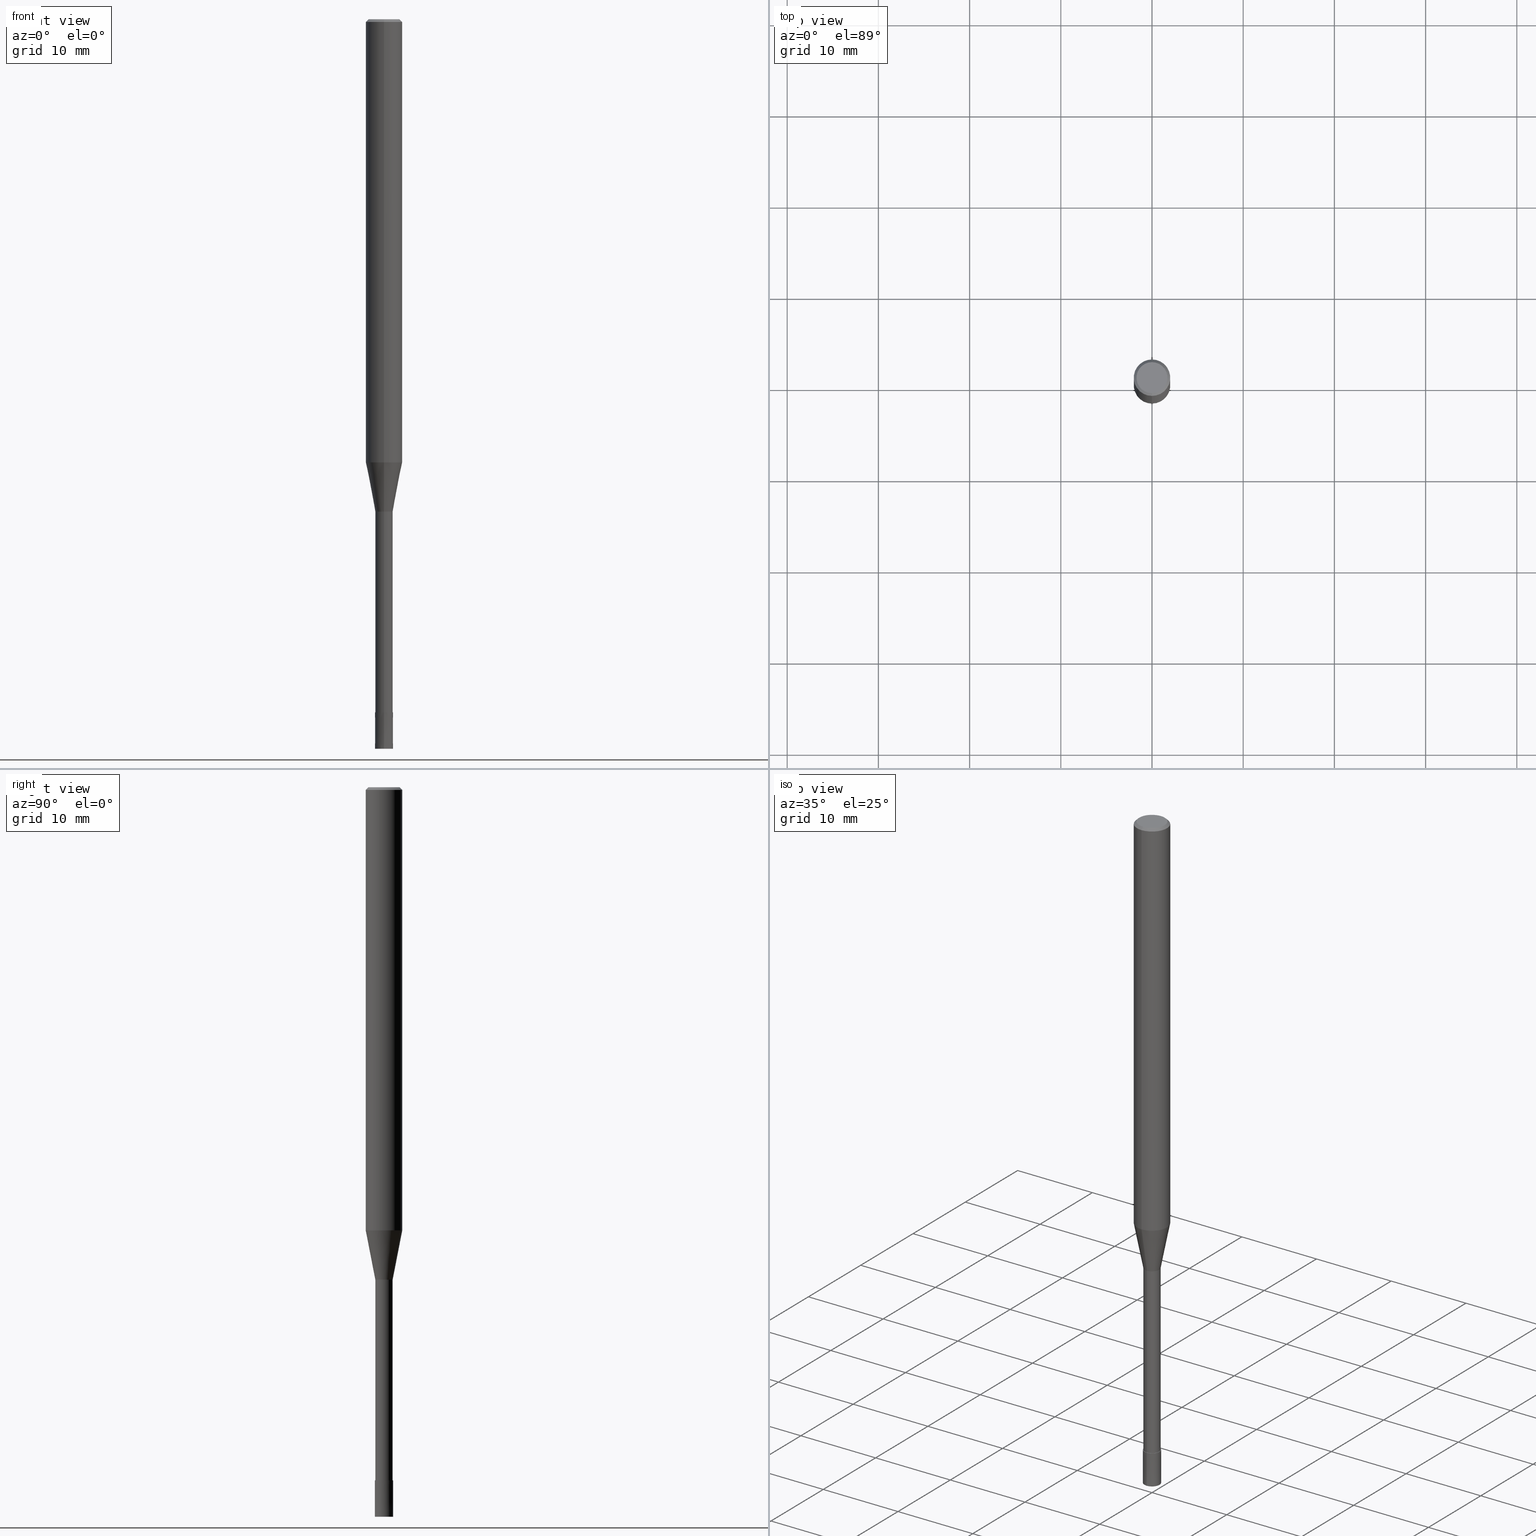
[diagram: canonical four-view strip — front | top / right | iso, engineering-drawing reading convention]
A machine part, canonical four-view strip (front | top / right | iso — engineering-drawing reading convention). The complete STEP part file that produces these views, byte-faithful:
ISO-10303-21;
HEADER;
FILE_DESCRIPTION(('no description'),'unknown implementation level');
FILE_NAME('CPRL2020-26-Huellk.stp','  ',('CIMSOURCE GmbH'),('CADClick - KiM GmbH - www.kimweb.de'),'unknown preprocess','ACIS','unknown authorization');
FILE_SCHEMA(('automotive_design'));
ENDSEC;
DATA;
#1=MECHANICAL_DESIGN_GEOMETRIC_PRESENTATION_REPRESENTATION(' ',(#14,#15,#16,#17,#18,#19,#20,#21,#22,#23,#24,#25,#26,#27,#28,#29,#30,#31,#32,#33,#34,#35,#36,#37,#38,#39,#40,#41,#42,#43,#44,#45,#46,#47,#48,#49,#50,#51,#52,#53,#54,#55,#56,#57,#58,#59,#60,#61,#62,#63,#64,#65,#66,#67,#68,#69,#70,#71,#72),#10);
#2=PRODUCT_DEFINITION_CONTEXT('',#73,'design');
#3=APPLICATION_PROTOCOL_DEFINITION('INTERNATIONAL STANDARD','automotive_design',1994,#73);
#4=PRODUCT_CATEGORY_RELATIONSHIP('NONE','NONE',#74,#75);
#5=SHAPE_DEFINITION_REPRESENTATION(#76,#77);
#6=PRODUCT_DEFINITION_CONTEXT('',#78,'design');
#7=APPLICATION_PROTOCOL_DEFINITION('INTERNATIONAL STANDARD','automotive_design',1994,#78);
#8=PRODUCT_CATEGORY_RELATIONSHIP('NONE','NONE',#79,#80);
#9=SHAPE_DEFINITION_REPRESENTATION(#81,#82);
#10= (GEOMETRIC_REPRESENTATION_CONTEXT(3)GLOBAL_UNCERTAINTY_ASSIGNED_CONTEXT((#85))GLOBAL_UNIT_ASSIGNED_CONTEXT((#87,#88,#89))REPRESENTATION_CONTEXT('NONE','WORKSPACE'));
#14=STYLED_ITEM('',(#91),#92);
#15=STYLED_ITEM('',(#93),#94);
#16=STYLED_ITEM('',(#95),#96);
#17=STYLED_ITEM('',(#97),#98);
#18=STYLED_ITEM('',(#99),#100);
#19=STYLED_ITEM('',(#101),#102);
#20=STYLED_ITEM('',(#103),#104);
#21=STYLED_ITEM('',(#105),#106);
#22=STYLED_ITEM('',(#107),#108);
#23=STYLED_ITEM('',(#109),#110);
#24=STYLED_ITEM('',(#111),#112);
#25=STYLED_ITEM('',(#113),#114);
#26=STYLED_ITEM('',(#115),#116);
#27=STYLED_ITEM('',(#117),#118);
#28=STYLED_ITEM('',(#119),#120);
#29=STYLED_ITEM('',(#121),#122);
#30=STYLED_ITEM('',(#123),#124);
#31=STYLED_ITEM('',(#125),#126);
#32=STYLED_ITEM('',(#127),#128);
#33=STYLED_ITEM('',(#129),#130);
#34=STYLED_ITEM('',(#131),#132);
#35=STYLED_ITEM('',(#133),#134);
#36=STYLED_ITEM('',(#135),#136);
#37=STYLED_ITEM('',(#137),#138);
#38=STYLED_ITEM('',(#139),#140);
#39=STYLED_ITEM('',(#141),#142);
#40=STYLED_ITEM('',(#143),#144);
#41=STYLED_ITEM('',(#145),#146);
#42=STYLED_ITEM('',(#147),#148);
#43=STYLED_ITEM('',(#149),#150);
#44=STYLED_ITEM('',(#151),#152);
#45=STYLED_ITEM('',(#153),#154);
#46=STYLED_ITEM('',(#155),#156);
#47=STYLED_ITEM('',(#157),#158);
#48=STYLED_ITEM('',(#159),#160);
#49=STYLED_ITEM('',(#161),#162);
#50=STYLED_ITEM('',(#163),#164);
#51=STYLED_ITEM('',(#165),#166);
#52=STYLED_ITEM('',(#167),#168);
#53=STYLED_ITEM('',(#169),#170);
#54=STYLED_ITEM('',(#171),#172);
#55=STYLED_ITEM('',(#173),#174);
#56=STYLED_ITEM('',(#175),#176);
#57=STYLED_ITEM('',(#177),#178);
#58=STYLED_ITEM('',(#179),#180);
#59=STYLED_ITEM('',(#181),#182);
#60=STYLED_ITEM('',(#183),#184);
#61=STYLED_ITEM('',(#185),#186);
#62=STYLED_ITEM('',(#187),#188);
#63=STYLED_ITEM('',(#189),#190);
#64=STYLED_ITEM('',(#191),#192);
#65=STYLED_ITEM('',(#193),#194);
#66=STYLED_ITEM('',(#195),#196);
#67=STYLED_ITEM('',(#197),#198);
#68=STYLED_ITEM('',(#199),#200);
#69=STYLED_ITEM('',(#201),#202);
#70=STYLED_ITEM('',(#203),#204);
#71=STYLED_ITEM('',(#205),#206);
#72=STYLED_ITEM('',(#207),#208);
#73=APPLICATION_CONTEXT(' ');
#74=PRODUCT_CATEGORY('part','NONE');
#75=PRODUCT_RELATED_PRODUCT_CATEGORY('detail',' ',(#209));
#76=PRODUCT_DEFINITION_SHAPE('NONE','NONE',#210);
#77=ADVANCED_BREP_SHAPE_REPRESENTATION('1',(#136,#211),#10);
#78=APPLICATION_CONTEXT(' ');
#79=PRODUCT_CATEGORY('part','NONE');
#80=PRODUCT_RELATED_PRODUCT_CATEGORY('detail',' ',(#212));
#81=PRODUCT_DEFINITION_SHAPE('NONE','NONE',#213);
#82=ADVANCED_BREP_SHAPE_REPRESENTATION('2',(#110,#214),#10);
#85=UNCERTAINTY_MEASURE_WITH_UNIT(LENGTH_MEASURE(1.0E-006),#87,'','');
#87= (CONVERSION_BASED_UNIT('MILLIMETRE',#217)LENGTH_UNIT()NAMED_UNIT(#220));
#88= (NAMED_UNIT(#222)PLANE_ANGLE_UNIT()SI_UNIT($,.RADIAN.));
#89= (NAMED_UNIT(#222)SOLID_ANGLE_UNIT()SI_UNIT($,.STERADIAN.));
#91=PRESENTATION_STYLE_ASSIGNMENT((#228));
#92=EDGE_CURVE('',#114,#142,#229,.T.);
#93=PRESENTATION_STYLE_ASSIGNMENT((#230));
#94=ADVANCED_FACE('',(#231),#232,.T.);
#95=PRESENTATION_STYLE_ASSIGNMENT((#233));
#96=EDGE_CURVE('',#156,#170,#234,.T.);
#97=PRESENTATION_STYLE_ASSIGNMENT((#235));
#98=ADVANCED_FACE('',(#236),#237,.T.);
#99=PRESENTATION_STYLE_ASSIGNMENT((#238));
#100=VERTEX_POINT('',#239);
#101=PRESENTATION_STYLE_ASSIGNMENT((#240));
#102=VERTEX_POINT('',#241);
#103=PRESENTATION_STYLE_ASSIGNMENT((#242));
#104=EDGE_CURVE('',#200,#116,#243,.T.);
#105=PRESENTATION_STYLE_ASSIGNMENT((#244));
#106=VERTEX_POINT('',#245);
#107=PRESENTATION_STYLE_ASSIGNMENT((#246));
#108=VERTEX_POINT('',#247);
#109=PRESENTATION_STYLE_ASSIGNMENT((#248));
#110=MANIFOLD_SOLID_BREP('2',#249);
#111=PRESENTATION_STYLE_ASSIGNMENT((#250));
#112=ADVANCED_FACE('',(#251),#252,.T.);
#113=PRESENTATION_STYLE_ASSIGNMENT((#253));
#114=VERTEX_POINT('',#254);
#115=PRESENTATION_STYLE_ASSIGNMENT((#255));
#116=VERTEX_POINT('',#256);
#117=PRESENTATION_STYLE_ASSIGNMENT((#257));
#118=VERTEX_POINT('',#258);
#119=PRESENTATION_STYLE_ASSIGNMENT((#259));
#120=EDGE_CURVE('',#158,#118,#260,.T.);
#121=PRESENTATION_STYLE_ASSIGNMENT((#261));
#122=EDGE_CURVE('',#142,#148,#262,.T.);
#123=PRESENTATION_STYLE_ASSIGNMENT((#263));
#124=EDGE_CURVE('',#144,#156,#264,.T.);
#125=PRESENTATION_STYLE_ASSIGNMENT((#265));
#126=EDGE_CURVE('',#148,#100,#266,.T.);
#127=PRESENTATION_STYLE_ASSIGNMENT((#267));
#128=ADVANCED_FACE('',(#268),#269,.T.);
#129=PRESENTATION_STYLE_ASSIGNMENT((#270));
#130=ADVANCED_FACE('',(#271),#272,.T.);
#131=PRESENTATION_STYLE_ASSIGNMENT((#273));
#132=ADVANCED_FACE('',(#274),#275,.T.);
#133=PRESENTATION_STYLE_ASSIGNMENT((#276));
#134=EDGE_CURVE('',#114,#100,#277,.T.);
#135=PRESENTATION_STYLE_ASSIGNMENT((#278));
#136=MANIFOLD_SOLID_BREP('1',#279);
#137=PRESENTATION_STYLE_ASSIGNMENT((#280));
#138=EDGE_CURVE('',#186,#106,#281,.T.);
#139=PRESENTATION_STYLE_ASSIGNMENT((#282));
#140=ADVANCED_FACE('',(#283),#284,.T.);
#141=PRESENTATION_STYLE_ASSIGNMENT((#285));
#142=VERTEX_POINT('',#286);
#143=PRESENTATION_STYLE_ASSIGNMENT((#287));
#144=VERTEX_POINT('',#288);
#145=PRESENTATION_STYLE_ASSIGNMENT((#289));
#146=EDGE_CURVE('',#100,#114,#290,.T.);
#147=PRESENTATION_STYLE_ASSIGNMENT((#291));
#148=VERTEX_POINT('',#292);
#149=PRESENTATION_STYLE_ASSIGNMENT((#293));
#150=ADVANCED_FACE('',(#294,#295),#296,.T.);
#151=PRESENTATION_STYLE_ASSIGNMENT((#297));
#152=EDGE_CURVE('',#106,#206,#298,.T.);
#153=PRESENTATION_STYLE_ASSIGNMENT((#299));
#154=ADVANCED_FACE('',(#300),#301,.T.);
#155=PRESENTATION_STYLE_ASSIGNMENT((#302));
#156=VERTEX_POINT('',#303);
#157=PRESENTATION_STYLE_ASSIGNMENT((#304));
#158=VERTEX_POINT('',#305);
#159=PRESENTATION_STYLE_ASSIGNMENT((#306));
#160=EDGE_CURVE('',#158,#108,#307,.T.);
#161=PRESENTATION_STYLE_ASSIGNMENT((#308));
#162=EDGE_CURVE('',#156,#144,#309,.T.);
#163=PRESENTATION_STYLE_ASSIGNMENT((#310));
#164=EDGE_CURVE('',#206,#118,#311,.T.);
#165=PRESENTATION_STYLE_ASSIGNMENT((#312));
#166=EDGE_CURVE('',#148,#142,#313,.T.);
#167=PRESENTATION_STYLE_ASSIGNMENT((#314));
#168=ADVANCED_FACE('',(#315),#316,.T.);
#169=PRESENTATION_STYLE_ASSIGNMENT((#317));
#170=VERTEX_POINT('',#318);
#171=PRESENTATION_STYLE_ASSIGNMENT((#319));
#172=ADVANCED_FACE('',(#320),#321,.T.);
#173=PRESENTATION_STYLE_ASSIGNMENT((#322));
#174=EDGE_CURVE('',#108,#158,#323,.T.);
#175=PRESENTATION_STYLE_ASSIGNMENT((#324));
#176=EDGE_CURVE('',#102,#170,#325,.T.);
#177=PRESENTATION_STYLE_ASSIGNMENT((#326));
#178=EDGE_CURVE('',#116,#200,#327,.T.);
#179=PRESENTATION_STYLE_ASSIGNMENT((#328));
#180=ADVANCED_FACE('',(#329),#330,.T.);
#181=PRESENTATION_STYLE_ASSIGNMENT((#331));
#182=EDGE_CURVE('',#116,#156,#332,.T.);
#183=PRESENTATION_STYLE_ASSIGNMENT((#333));
#184=EDGE_CURVE('',#144,#200,#334,.T.);
#185=PRESENTATION_STYLE_ASSIGNMENT((#335));
#186=VERTEX_POINT('',#336);
#187=PRESENTATION_STYLE_ASSIGNMENT((#337));
#188=EDGE_CURVE('',#102,#144,#338,.T.);
#189=PRESENTATION_STYLE_ASSIGNMENT((#339));
#190=ADVANCED_FACE('',(#340),#341,.T.);
#191=PRESENTATION_STYLE_ASSIGNMENT((#342));
#192=EDGE_CURVE('',#106,#186,#343,.T.);
#193=PRESENTATION_STYLE_ASSIGNMENT((#344));
#194=ADVANCED_FACE('',(#345),#346,.T.);
#195=PRESENTATION_STYLE_ASSIGNMENT((#347));
#196=EDGE_CURVE('',#118,#206,#348,.T.);
#197=PRESENTATION_STYLE_ASSIGNMENT((#349));
#198=EDGE_CURVE('',#170,#102,#350,.T.);
#199=PRESENTATION_STYLE_ASSIGNMENT((#351));
#200=VERTEX_POINT('',#352);
#201=PRESENTATION_STYLE_ASSIGNMENT((#353));
#202=EDGE_CURVE('',#206,#108,#354,.T.);
#203=PRESENTATION_STYLE_ASSIGNMENT((#355));
#204=EDGE_CURVE('',#118,#186,#356,.T.);
#205=PRESENTATION_STYLE_ASSIGNMENT((#357));
#206=VERTEX_POINT('',#358);
#207=PRESENTATION_STYLE_ASSIGNMENT((#359));
#208=ADVANCED_FACE('',(#360),#361,.T.);
#209=PRODUCT('1','1','PART-1-DESC',(#362));
#210=PRODUCT_DEFINITION('NONE','NONE',#363,#2);
#211=AXIS2_PLACEMENT_3D('',#364,#365,#366);
#212=PRODUCT('2','2','PART-2-DESC',(#367));
#213=PRODUCT_DEFINITION('NONE','NONE',#368,#6);
#214=AXIS2_PLACEMENT_3D('',#369,#370,#371);
#217=LENGTH_MEASURE_WITH_UNIT(LENGTH_MEASURE(1.0),#372);
#220=DIMENSIONAL_EXPONENTS(1.0,0.0,0.0,0.0,0.0,0.0,0.0);
#222=DIMENSIONAL_EXPONENTS(0.0,0.0,0.0,0.0,0.0,0.0,0.0);
#228=CURVE_STYLE('',#373,POSITIVE_LENGTH_MEASURE(1.0E-006),#374);
#229=LINE('',#375,#376);
#230=SURFACE_STYLE_USAGE(.BOTH.,#377);
#231=FACE_OUTER_BOUND('',#378,.T.);
#232=CYLINDRICAL_SURFACE('',#379,2.0);
#233=CURVE_STYLE('',#380,POSITIVE_LENGTH_MEASURE(1.0E-006),#381);
#234=LINE('',#382,#383);
#235=SURFACE_STYLE_USAGE(.BOTH.,#384);
#236=FACE_OUTER_BOUND('',#385,.T.);
#237=PLANE('',#386);
#238=POINT_STYLE(' ',#387,POSITIVE_LENGTH_MEASURE(1.0E-006),#388);
#239=CARTESIAN_POINT('',(1.224483893187E-016,-0.9999,-76.0));
#240=POINT_STYLE(' ',#389,POSITIVE_LENGTH_MEASURE(1.0E-006),#390);
#241=CARTESIAN_POINT('',(2.44921270764475E-016,-2.0,-48.598));
#242=CURVE_STYLE('',#391,POSITIVE_LENGTH_MEASURE(1.0E-006),#392);
#243=CIRCLE('',#393,1.7);
#244=POINT_STYLE(' ',#394,POSITIVE_LENGTH_MEASURE(1.0E-006),#395);
#245=CARTESIAN_POINT('',(1.16331480581357E-016,-0.94995,-76.0));
#246=POINT_STYLE(' ',#396,POSITIVE_LENGTH_MEASURE(1.0E-006),#397);
#247=CARTESIAN_POINT('',(2.44915147732706E-016,-1.99995,-48.598));
#248=SURFACE_STYLE_USAGE(.BOTH.,#398);
#249=CLOSED_SHELL('',(#180,#128,#132,#98));
#250=SURFACE_STYLE_USAGE(.BOTH.,#399);
#251=FACE_OUTER_BOUND('',#400,.T.);
#252=PLANE('',#401);
#253=POINT_STYLE(' ',#402,POSITIVE_LENGTH_MEASURE(1.0E-006),#403);
#254=CARTESIAN_POINT('',(0.0,0.9999,-76.0));
#255=POINT_STYLE(' ',#404,POSITIVE_LENGTH_MEASURE(1.0E-006),#405);
#256=CARTESIAN_POINT('',(0.0,1.7,0.0));
#257=POINT_STYLE(' ',#406,POSITIVE_LENGTH_MEASURE(1.0E-006),#407);
#258=CARTESIAN_POINT('',(0.0,0.94995,-54.0));
#259=CURVE_STYLE('',#408,POSITIVE_LENGTH_MEASURE(1.0E-006),#409);
#260=LINE('',#410,#411);
#261=CURVE_STYLE('',#412,POSITIVE_LENGTH_MEASURE(1.0E-006),#413);
#262=CIRCLE('',#414,1.0);
#263=CURVE_STYLE('',#415,POSITIVE_LENGTH_MEASURE(1.0E-006),#416);
#264=CIRCLE('',#417,2.0);
#265=CURVE_STYLE('',#418,POSITIVE_LENGTH_MEASURE(1.0E-006),#419);
#266=LINE('',#420,#421);
#267=SURFACE_STYLE_USAGE(.BOTH.,#422);
#268=FACE_OUTER_BOUND('',#423,.T.);
#269=PLANE('',#424);
#270=SURFACE_STYLE_USAGE(.BOTH.,#425);
#271=FACE_OUTER_BOUND('',#426,.T.);
#272=CONICAL_SURFACE('',#427,1.47495,0.191978649183841);
#273=SURFACE_STYLE_USAGE(.BOTH.,#428);
#274=FACE_OUTER_BOUND('',#429,.T.);
#275=CONICAL_SURFACE('',#430,0.99995,2.49999999947889E-005);
#276=CURVE_STYLE('',#431,POSITIVE_LENGTH_MEASURE(1.0E-006),#432);
#277=CIRCLE('',#433,0.9999);
#278=SURFACE_STYLE_USAGE(.BOTH.,#434);
#279=CLOSED_SHELL('',(#190,#208,#194,#154,#150,#172,#168,#94,#130,#140,#112));
#280=CURVE_STYLE('',#435,POSITIVE_LENGTH_MEASURE(1.0E-006),#436);
#281=CIRCLE('',#437,0.94995);
#282=SURFACE_STYLE_USAGE(.BOTH.,#438);
#283=FACE_OUTER_BOUND('',#439,.T.);
#284=CYLINDRICAL_SURFACE('',#440,0.94995);
#285=POINT_STYLE(' ',#441,POSITIVE_LENGTH_MEASURE(1.0E-006),#442);
#286=CARTESIAN_POINT('',(0.0,1.0,-80.0));
#287=POINT_STYLE(' ',#443,POSITIVE_LENGTH_MEASURE(1.0E-006),#444);
#288=CARTESIAN_POINT('',(2.44921270764475E-016,-2.0,-0.299999999999997));
#289=CURVE_STYLE('',#445,POSITIVE_LENGTH_MEASURE(1.0E-006),#446);
#290=CIRCLE('',#447,0.9999);
#291=POINT_STYLE(' ',#448,POSITIVE_LENGTH_MEASURE(1.0E-006),#449);
#292=CARTESIAN_POINT('',(1.22460635382238E-016,-1.0,-80.0));
#293=SURFACE_STYLE_USAGE(.BOTH.,#450);
#294=FACE_OUTER_BOUND('',#451,.T.);
#295=FACE_BOUND('',#452,.T.);
#296=PLANE('',#453);
#297=CURVE_STYLE('',#454,POSITIVE_LENGTH_MEASURE(1.0E-006),#455);
#298=LINE('',#456,#457);
#299=SURFACE_STYLE_USAGE(.BOTH.,#458);
#300=FACE_OUTER_BOUND('',#459,.T.);
#301=CONICAL_SURFACE('',#460,1.85,0.785398163397453);
#302=POINT_STYLE(' ',#461,POSITIVE_LENGTH_MEASURE(1.0E-006),#462);
#303=CARTESIAN_POINT('',(0.0,2.0,-0.299999999999997));
#304=POINT_STYLE(' ',#463,POSITIVE_LENGTH_MEASURE(1.0E-006),#464);
#305=CARTESIAN_POINT('',(0.0,1.99995,-48.598));
#306=CURVE_STYLE('',#465,POSITIVE_LENGTH_MEASURE(1.0E-006),#466);
#307=CIRCLE('',#467,1.99995);
#308=CURVE_STYLE('',#468,POSITIVE_LENGTH_MEASURE(1.0E-006),#469);
#309=CIRCLE('',#470,2.0);
#310=CURVE_STYLE('',#471,POSITIVE_LENGTH_MEASURE(1.0E-006),#472);
#311=CIRCLE('',#473,0.94995);
#312=CURVE_STYLE('',#474,POSITIVE_LENGTH_MEASURE(1.0E-006),#475);
#313=CIRCLE('',#476,1.0);
#314=SURFACE_STYLE_USAGE(.BOTH.,#477);
#315=FACE_OUTER_BOUND('',#478,.T.);
#316=CONICAL_SURFACE('',#479,1.85,0.785398163397453);
#317=POINT_STYLE(' ',#480,POSITIVE_LENGTH_MEASURE(1.0E-006),#481);
#318=CARTESIAN_POINT('',(0.0,2.0,-48.598));
#319=SURFACE_STYLE_USAGE(.BOTH.,#482);
#320=FACE_OUTER_BOUND('',#483,.T.);
#321=PLANE('',#484);
#322=CURVE_STYLE('',#485,POSITIVE_LENGTH_MEASURE(1.0E-006),#486);
#323=CIRCLE('',#487,1.99995);
#324=CURVE_STYLE('',#488,POSITIVE_LENGTH_MEASURE(1.0E-006),#489);
#325=CIRCLE('',#490,2.0);
#326=CURVE_STYLE('',#491,POSITIVE_LENGTH_MEASURE(1.0E-006),#492);
#327=CIRCLE('',#493,1.7);
#328=SURFACE_STYLE_USAGE(.BOTH.,#494);
#329=FACE_OUTER_BOUND('',#495,.T.);
#330=CONICAL_SURFACE('',#496,0.99995,2.49999999947889E-005);
#331=CURVE_STYLE('',#497,POSITIVE_LENGTH_MEASURE(1.0E-006),#498);
#332=LINE('',#499,#500);
#333=CURVE_STYLE('',#501,POSITIVE_LENGTH_MEASURE(1.0E-006),#502);
#334=LINE('',#503,#504);
#335=POINT_STYLE(' ',#505,POSITIVE_LENGTH_MEASURE(1.0E-006),#506);
#336=CARTESIAN_POINT('',(0.0,0.94995,-76.0));
#337=CURVE_STYLE('',#507,POSITIVE_LENGTH_MEASURE(1.0E-006),#508);
#338=LINE('',#509,#510);
#339=SURFACE_STYLE_USAGE(.BOTH.,#511);
#340=FACE_OUTER_BOUND('',#512,.T.);
#341=CYLINDRICAL_SURFACE('',#513,0.94995);
#342=CURVE_STYLE('',#514,POSITIVE_LENGTH_MEASURE(1.0E-006),#515);
#343=CIRCLE('',#516,0.94995);
#344=SURFACE_STYLE_USAGE(.BOTH.,#517);
#345=FACE_OUTER_BOUND('',#518,.T.);
#346=CYLINDRICAL_SURFACE('',#519,2.0);
#347=CURVE_STYLE('',#520,POSITIVE_LENGTH_MEASURE(1.0E-006),#521);
#348=CIRCLE('',#522,0.94995);
#349=CURVE_STYLE('',#523,POSITIVE_LENGTH_MEASURE(1.0E-006),#524);
#350=CIRCLE('',#525,2.0);
#351=POINT_STYLE(' ',#526,POSITIVE_LENGTH_MEASURE(1.0E-006),#527);
#352=CARTESIAN_POINT('',(2.08183080149804E-016,-1.7,0.0));
#353=CURVE_STYLE('',#528,POSITIVE_LENGTH_MEASURE(1.0E-006),#529);
#354=LINE('',#530,#531);
#355=CURVE_STYLE('',#532,POSITIVE_LENGTH_MEASURE(1.0E-006),#533);
#356=LINE('',#534,#535);
#357=POINT_STYLE(' ',#536,POSITIVE_LENGTH_MEASURE(1.0E-006),#537);
#358=CARTESIAN_POINT('',(1.16331480581357E-016,-0.94995,-54.0));
#359=SURFACE_STYLE_USAGE(.BOTH.,#538);
#360=FACE_OUTER_BOUND('',#539,.T.);
#361=CONICAL_SURFACE('',#540,1.47495,0.191978649183841);
#362=PRODUCT_CONTEXT('',#73,'mechanical');
#363=PRODUCT_DEFINITION_FORMATION_WITH_SPECIFIED_SOURCE(' ','NONE',#209,.NOT_KNOWN.);
#364=CARTESIAN_POINT('',(0.0,0.0,0.0));
#365=DIRECTION('',(0.0,0.0,1.0));
#366=DIRECTION('',(1.0,0.0,0.0));
#367=PRODUCT_CONTEXT('',#78,'mechanical');
#368=PRODUCT_DEFINITION_FORMATION_WITH_SPECIFIED_SOURCE(' ','NONE',#212,.NOT_KNOWN.);
#369=CARTESIAN_POINT('',(0.0,0.0,0.0));
#370=DIRECTION('',(0.0,0.0,1.0));
#371=DIRECTION('',(1.0,0.0,0.0));
#372= (NAMED_UNIT(#220)LENGTH_UNIT()SI_UNIT(.MILLI.,.METRE.));
#373=DRAUGHTING_PRE_DEFINED_CURVE_FONT('continuous');
#374=COLOUR_RGB('',0.800000011920929,0.800000011920929,0.800000011920929);
#375=CARTESIAN_POINT('',(-1.22454512350469E-016,0.99995,-78.0));
#376=VECTOR('',#542,1.0);
#377=SURFACE_SIDE_STYLE('',(#543));
#378=EDGE_LOOP('',(#544,#545,#546,#547));
#379=AXIS2_PLACEMENT_3D('',#548,#549,#550);
#380=DRAUGHTING_PRE_DEFINED_CURVE_FONT('continuous');
#381=COLOUR_RGB('',0.498039215803146,0.498039215803146,0.498039215803146);
#382=CARTESIAN_POINT('',(-2.44921270764475E-016,2.0,-24.449));
#383=VECTOR('',#551,1.0);
#384=SURFACE_SIDE_STYLE('',(#552));
#385=EDGE_LOOP('',(#553,#554));
#386=AXIS2_PLACEMENT_3D('',#555,#556,#557);
#387=PRE_DEFINED_MARKER('');
#388=COLOUR_RGB('',0.800000011920929,0.800000011920929,0.800000011920929);
#389=PRE_DEFINED_MARKER('');
#390=COLOUR_RGB('',0.498039215803146,0.498039215803146,0.498039215803146);
#391=DRAUGHTING_PRE_DEFINED_CURVE_FONT('continuous');
#392=COLOUR_RGB('',0.498039215803146,0.498039215803146,0.498039215803146);
#393=AXIS2_PLACEMENT_3D('',#558,#559,#560);
#394=PRE_DEFINED_MARKER('');
#395=COLOUR_RGB('',0.498039215803146,0.498039215803146,0.498039215803146);
#396=PRE_DEFINED_MARKER('');
#397=COLOUR_RGB('',0.498039215803146,0.498039215803146,0.498039215803146);
#398=SURFACE_SIDE_STYLE('',(#561));
#399=SURFACE_SIDE_STYLE('',(#562));
#400=EDGE_LOOP('',(#563,#564));
#401=AXIS2_PLACEMENT_3D('',#565,#566,#567);
#402=PRE_DEFINED_MARKER('');
#403=COLOUR_RGB('',0.800000011920929,0.800000011920929,0.800000011920929);
#404=PRE_DEFINED_MARKER('');
#405=COLOUR_RGB('',0.498039215803146,0.498039215803146,0.498039215803146);
#406=PRE_DEFINED_MARKER('');
#407=COLOUR_RGB('',0.498039215803146,0.498039215803146,0.498039215803146);
#408=DRAUGHTING_PRE_DEFINED_CURVE_FONT('continuous');
#409=COLOUR_RGB('',0.498039215803146,0.498039215803146,0.498039215803146);
#410=CARTESIAN_POINT('',(-1.80623314157032E-016,1.47495,-51.299));
#411=VECTOR('',#568,1.0);
#412=DRAUGHTING_PRE_DEFINED_CURVE_FONT('continuous');
#413=COLOUR_RGB('',0.800000011920929,0.800000011920929,0.800000011920929);
#414=AXIS2_PLACEMENT_3D('',#569,#570,#571);
#415=DRAUGHTING_PRE_DEFINED_CURVE_FONT('continuous');
#416=COLOUR_RGB('',0.498039215803146,0.498039215803146,0.498039215803146);
#417=AXIS2_PLACEMENT_3D('',#572,#573,#574);
#418=DRAUGHTING_PRE_DEFINED_CURVE_FONT('continuous');
#419=COLOUR_RGB('',0.800000011920929,0.800000011920929,0.800000011920929);
#420=CARTESIAN_POINT('',(1.22454512350469E-016,-0.99995,-78.0));
#421=VECTOR('',#575,1.0);
#422=SURFACE_SIDE_STYLE('',(#576));
#423=EDGE_LOOP('',(#577,#578));
#424=AXIS2_PLACEMENT_3D('',#579,#580,#581);
#425=SURFACE_SIDE_STYLE('',(#582));
#426=EDGE_LOOP('',(#583,#584,#585,#586));
#427=AXIS2_PLACEMENT_3D('',#587,#588,#589);
#428=SURFACE_SIDE_STYLE('',(#590));
#429=EDGE_LOOP('',(#591,#592,#593,#594));
#430=AXIS2_PLACEMENT_3D('',#595,#596,#597);
#431=DRAUGHTING_PRE_DEFINED_CURVE_FONT('continuous');
#432=COLOUR_RGB('',0.800000011920929,0.800000011920929,0.800000011920929);
#433=AXIS2_PLACEMENT_3D('',#598,#599,#600);
#434=SURFACE_SIDE_STYLE('',(#601));
#435=DRAUGHTING_PRE_DEFINED_CURVE_FONT('continuous');
#436=COLOUR_RGB('',0.498039215803146,0.498039215803146,0.498039215803146);
#437=AXIS2_PLACEMENT_3D('',#602,#603,#604);
#438=SURFACE_SIDE_STYLE('',(#605));
#439=EDGE_LOOP('',(#606,#607,#608,#609));
#440=AXIS2_PLACEMENT_3D('',#610,#611,#612);
#441=PRE_DEFINED_MARKER('');
#442=COLOUR_RGB('',0.800000011920929,0.800000011920929,0.800000011920929);
#443=PRE_DEFINED_MARKER('');
#444=COLOUR_RGB('',0.498039215803146,0.498039215803146,0.498039215803146);
#445=DRAUGHTING_PRE_DEFINED_CURVE_FONT('continuous');
#446=COLOUR_RGB('',0.800000011920929,0.800000011920929,0.800000011920929);
#447=AXIS2_PLACEMENT_3D('',#613,#614,#615);
#448=PRE_DEFINED_MARKER('');
#449=COLOUR_RGB('',0.800000011920929,0.800000011920929,0.800000011920929);
#450=SURFACE_SIDE_STYLE('',(#616));
#451=EDGE_LOOP('',(#617,#618));
#452=EDGE_LOOP('',(#619,#620));
#453=AXIS2_PLACEMENT_3D('',#621,#622,#623);
#454=DRAUGHTING_PRE_DEFINED_CURVE_FONT('continuous');
#455=COLOUR_RGB('',0.498039215803146,0.498039215803146,0.498039215803146);
#456=CARTESIAN_POINT('',(1.16331480581357E-016,-0.94995,-65.0));
#457=VECTOR('',#624,1.0);
#458=SURFACE_SIDE_STYLE('',(#625));
#459=EDGE_LOOP('',(#626,#627,#628,#629));
#460=AXIS2_PLACEMENT_3D('',#630,#631,#632);
#461=PRE_DEFINED_MARKER('');
#462=COLOUR_RGB('',0.498039215803146,0.498039215803146,0.498039215803146);
#463=PRE_DEFINED_MARKER('');
#464=COLOUR_RGB('',0.498039215803146,0.498039215803146,0.498039215803146);
#465=DRAUGHTING_PRE_DEFINED_CURVE_FONT('continuous');
#466=COLOUR_RGB('',0.498039215803146,0.498039215803146,0.498039215803146);
#467=AXIS2_PLACEMENT_3D('',#633,#634,#635);
#468=DRAUGHTING_PRE_DEFINED_CURVE_FONT('continuous');
#469=COLOUR_RGB('',0.498039215803146,0.498039215803146,0.498039215803146);
#470=AXIS2_PLACEMENT_3D('',#636,#637,#638);
#471=DRAUGHTING_PRE_DEFINED_CURVE_FONT('continuous');
#472=COLOUR_RGB('',0.498039215803146,0.498039215803146,0.498039215803146);
#473=AXIS2_PLACEMENT_3D('',#639,#640,#641);
#474=DRAUGHTING_PRE_DEFINED_CURVE_FONT('continuous');
#475=COLOUR_RGB('',0.800000011920929,0.800000011920929,0.800000011920929);
#476=AXIS2_PLACEMENT_3D('',#642,#643,#644);
#477=SURFACE_SIDE_STYLE('',(#645));
#478=EDGE_LOOP('',(#646,#647,#648,#649));
#479=AXIS2_PLACEMENT_3D('',#650,#651,#652);
#480=PRE_DEFINED_MARKER('');
#481=COLOUR_RGB('',0.498039215803146,0.498039215803146,0.498039215803146);
#482=SURFACE_SIDE_STYLE('',(#653));
#483=EDGE_LOOP('',(#654,#655));
#484=AXIS2_PLACEMENT_3D('',#656,#657,#658);
#485=DRAUGHTING_PRE_DEFINED_CURVE_FONT('continuous');
#486=COLOUR_RGB('',0.498039215803146,0.498039215803146,0.498039215803146);
#487=AXIS2_PLACEMENT_3D('',#659,#660,#661);
#488=DRAUGHTING_PRE_DEFINED_CURVE_FONT('continuous');
#489=COLOUR_RGB('',0.498039215803146,0.498039215803146,0.498039215803146);
#490=AXIS2_PLACEMENT_3D('',#662,#663,#664);
#491=DRAUGHTING_PRE_DEFINED_CURVE_FONT('continuous');
#492=COLOUR_RGB('',0.498039215803146,0.498039215803146,0.498039215803146);
#493=AXIS2_PLACEMENT_3D('',#665,#666,#667);
#494=SURFACE_SIDE_STYLE('',(#668));
#495=EDGE_LOOP('',(#669,#670,#671,#672));
#496=AXIS2_PLACEMENT_3D('',#673,#674,#675);
#497=DRAUGHTING_PRE_DEFINED_CURVE_FONT('continuous');
#498=COLOUR_RGB('',0.498039215803146,0.498039215803146,0.498039215803146);
#499=CARTESIAN_POINT('',(-2.2655217545714E-016,1.85,-0.149999999999999));
#500=VECTOR('',#676,1.0);
#501=DRAUGHTING_PRE_DEFINED_CURVE_FONT('continuous');
#502=COLOUR_RGB('',0.498039215803146,0.498039215803146,0.498039215803146);
#503=CARTESIAN_POINT('',(2.2655217545714E-016,-1.85,-0.149999999999999));
#504=VECTOR('',#677,1.0);
#505=PRE_DEFINED_MARKER('');
#506=COLOUR_RGB('',0.498039215803146,0.498039215803146,0.498039215803146);
#507=DRAUGHTING_PRE_DEFINED_CURVE_FONT('continuous');
#508=COLOUR_RGB('',0.498039215803146,0.498039215803146,0.498039215803146);
#509=CARTESIAN_POINT('',(2.44921270764475E-016,-2.0,-24.449));
#510=VECTOR('',#678,1.0);
#511=SURFACE_SIDE_STYLE('',(#679));
#512=EDGE_LOOP('',(#680,#681,#682,#683));
#513=AXIS2_PLACEMENT_3D('',#684,#685,#686);
#514=DRAUGHTING_PRE_DEFINED_CURVE_FONT('continuous');
#515=COLOUR_RGB('',0.498039215803146,0.498039215803146,0.498039215803146);
#516=AXIS2_PLACEMENT_3D('',#687,#688,#689);
#517=SURFACE_SIDE_STYLE('',(#690));
#518=EDGE_LOOP('',(#691,#692,#693,#694));
#519=AXIS2_PLACEMENT_3D('',#695,#696,#697);
#520=DRAUGHTING_PRE_DEFINED_CURVE_FONT('continuous');
#521=COLOUR_RGB('',0.498039215803146,0.498039215803146,0.498039215803146);
#522=AXIS2_PLACEMENT_3D('',#698,#699,#700);
#523=DRAUGHTING_PRE_DEFINED_CURVE_FONT('continuous');
#524=COLOUR_RGB('',0.498039215803146,0.498039215803146,0.498039215803146);
#525=AXIS2_PLACEMENT_3D('',#701,#702,#703);
#526=PRE_DEFINED_MARKER('');
#527=COLOUR_RGB('',0.498039215803146,0.498039215803146,0.498039215803146);
#528=DRAUGHTING_PRE_DEFINED_CURVE_FONT('continuous');
#529=COLOUR_RGB('',0.498039215803146,0.498039215803146,0.498039215803146);
#530=CARTESIAN_POINT('',(1.80623314157031E-016,-1.47495,-51.299));
#531=VECTOR('',#704,1.0);
#532=DRAUGHTING_PRE_DEFINED_CURVE_FONT('continuous');
#533=COLOUR_RGB('',0.498039215803146,0.498039215803146,0.498039215803146);
#534=CARTESIAN_POINT('',(-1.16331480581357E-016,0.94995,-65.0));
#535=VECTOR('',#705,1.0);
#536=PRE_DEFINED_MARKER('');
#537=COLOUR_RGB('',0.498039215803146,0.498039215803146,0.498039215803146);
#538=SURFACE_SIDE_STYLE('',(#706));
#539=EDGE_LOOP('',(#707,#708,#709,#710));
#540=AXIS2_PLACEMENT_3D('',#711,#712,#713);
#542=DIRECTION('',(-3.06151588359888E-021,2.49999999921847E-005,-0.9999999996875));
#543=SURFACE_STYLE_FILL_AREA(#714);
#544=ORIENTED_EDGE('',*,*,#96,.T.);
#545=ORIENTED_EDGE('',*,*,#176,.F.);
#546=ORIENTED_EDGE('',*,*,#188,.T.);
#547=ORIENTED_EDGE('',*,*,#124,.T.);
#548=CARTESIAN_POINT('',(0.0,0.0,-24.449));
#549=DIRECTION('',(-0.0,-0.0,1.0));
#550=DIRECTION('',(0.0,1.0,0.0));
#551=DIRECTION('',(0.0,0.0,-1.0));
#552=SURFACE_STYLE_FILL_AREA(#715);
#553=ORIENTED_EDGE('',*,*,#122,.T.);
#554=ORIENTED_EDGE('',*,*,#166,.T.);
#555=CARTESIAN_POINT('',(0.0,0.4975,-80.0));
#556=DIRECTION('',(0.0,0.0,-1.0));
#557=DIRECTION('',(0.0,1.0,0.0));
#558=CARTESIAN_POINT('',(0.0,0.0,0.0));
#559=DIRECTION('',(0.0,0.0,-1.0));
#560=DIRECTION('',(0.0,1.0,0.0));
#561=SURFACE_STYLE_FILL_AREA(#716);
#562=SURFACE_STYLE_FILL_AREA(#717);
#563=ORIENTED_EDGE('',*,*,#138,.T.);
#564=ORIENTED_EDGE('',*,*,#192,.T.);
#565=CARTESIAN_POINT('',(0.0,0.474975,-76.0));
#566=DIRECTION('',(0.0,0.0,-1.0));
#567=DIRECTION('',(0.0,1.0,0.0));
#568=DIRECTION('',(2.33656809909205E-017,-0.190801565890859,-0.981628627564211));
#569=CARTESIAN_POINT('',(0.0,0.0,-80.0));
#570=DIRECTION('',(0.0,0.0,-1.0));
#571=DIRECTION('',(0.0,1.0,0.0));
#572=CARTESIAN_POINT('',(0.0,0.0,-0.299999999999997));
#573=DIRECTION('',(0.0,0.0,-1.0));
#574=DIRECTION('',(0.0,1.0,0.0));
#575=DIRECTION('',(-3.06151588359888E-021,2.49999999921847E-005,0.9999999996875));
#576=SURFACE_STYLE_FILL_AREA(#718);
#577=ORIENTED_EDGE('',*,*,#134,.F.);
#578=ORIENTED_EDGE('',*,*,#146,.F.);
#579=CARTESIAN_POINT('',(0.0,0.49995,-76.0));
#580=DIRECTION('',(-0.0,0.0,1.0));
#581=DIRECTION('',(0.0,-1.0,0.0));
#582=SURFACE_STYLE_FILL_AREA(#719);
#583=ORIENTED_EDGE('',*,*,#120,.T.);
#584=ORIENTED_EDGE('',*,*,#164,.F.);
#585=ORIENTED_EDGE('',*,*,#202,.T.);
#586=ORIENTED_EDGE('',*,*,#174,.T.);
#587=CARTESIAN_POINT('',(0.0,0.0,-51.299));
#588=DIRECTION('',(-0.0,-0.0,1.0));
#589=DIRECTION('',(0.0,1.0,0.0));
#590=SURFACE_STYLE_FILL_AREA(#720);
#591=ORIENTED_EDGE('',*,*,#92,.T.);
#592=ORIENTED_EDGE('',*,*,#166,.F.);
#593=ORIENTED_EDGE('',*,*,#126,.T.);
#594=ORIENTED_EDGE('',*,*,#146,.T.);
#595=CARTESIAN_POINT('',(0.0,0.0,-78.0));
#596=DIRECTION('',(0.0,-0.0,-1.0));
#597=DIRECTION('',(0.0,1.0,0.0));
#598=CARTESIAN_POINT('',(0.0,0.0,-76.0));
#599=DIRECTION('',(0.0,0.0,-1.0));
#600=DIRECTION('',(0.0,1.0,0.0));
#601=SURFACE_STYLE_FILL_AREA(#721);
#602=CARTESIAN_POINT('',(0.0,0.0,-76.0));
#603=DIRECTION('',(0.0,0.0,-1.0));
#604=DIRECTION('',(0.0,1.0,0.0));
#605=SURFACE_STYLE_FILL_AREA(#722);
#606=ORIENTED_EDGE('',*,*,#204,.T.);
#607=ORIENTED_EDGE('',*,*,#192,.F.);
#608=ORIENTED_EDGE('',*,*,#152,.T.);
#609=ORIENTED_EDGE('',*,*,#164,.T.);
#610=CARTESIAN_POINT('',(0.0,0.0,-65.0));
#611=DIRECTION('',(-0.0,-0.0,1.0));
#612=DIRECTION('',(0.0,1.0,0.0));
#613=CARTESIAN_POINT('',(0.0,0.0,-76.0));
#614=DIRECTION('',(0.0,0.0,-1.0));
#615=DIRECTION('',(0.0,1.0,0.0));
#616=SURFACE_STYLE_FILL_AREA(#723);
#617=ORIENTED_EDGE('',*,*,#198,.T.);
#618=ORIENTED_EDGE('',*,*,#176,.T.);
#619=ORIENTED_EDGE('',*,*,#160,.F.);
#620=ORIENTED_EDGE('',*,*,#174,.F.);
#621=CARTESIAN_POINT('',(0.0,1.0,-48.598));
#622=DIRECTION('',(0.0,0.0,-1.0));
#623=DIRECTION('',(0.0,1.0,0.0));
#624=DIRECTION('',(-0.0,-0.0,1.0));
#625=SURFACE_STYLE_FILL_AREA(#724);
#626=ORIENTED_EDGE('',*,*,#182,.F.);
#627=ORIENTED_EDGE('',*,*,#178,.T.);
#628=ORIENTED_EDGE('',*,*,#184,.F.);
#629=ORIENTED_EDGE('',*,*,#162,.F.);
#630=CARTESIAN_POINT('',(0.0,0.0,-0.149999999999999));
#631=DIRECTION('',(0.0,-0.0,-1.0));
#632=DIRECTION('',(0.0,1.0,0.0));
#633=CARTESIAN_POINT('',(0.0,0.0,-48.598));
#634=DIRECTION('',(0.0,0.0,-1.0));
#635=DIRECTION('',(0.0,1.0,0.0));
#636=CARTESIAN_POINT('',(0.0,0.0,-0.299999999999997));
#637=DIRECTION('',(0.0,0.0,-1.0));
#638=DIRECTION('',(0.0,1.0,0.0));
#639=CARTESIAN_POINT('',(0.0,0.0,-54.0));
#640=DIRECTION('',(0.0,0.0,-1.0));
#641=DIRECTION('',(0.0,1.0,0.0));
#642=CARTESIAN_POINT('',(0.0,0.0,-80.0));
#643=DIRECTION('',(0.0,0.0,-1.0));
#644=DIRECTION('',(0.0,1.0,0.0));
#645=SURFACE_STYLE_FILL_AREA(#725);
#646=ORIENTED_EDGE('',*,*,#182,.T.);
#647=ORIENTED_EDGE('',*,*,#124,.F.);
#648=ORIENTED_EDGE('',*,*,#184,.T.);
#649=ORIENTED_EDGE('',*,*,#104,.T.);
#650=CARTESIAN_POINT('',(0.0,0.0,-0.149999999999999));
#651=DIRECTION('',(0.0,-0.0,-1.0));
#652=DIRECTION('',(0.0,1.0,0.0));
#653=SURFACE_STYLE_FILL_AREA(#726);
#654=ORIENTED_EDGE('',*,*,#178,.F.);
#655=ORIENTED_EDGE('',*,*,#104,.F.);
#656=CARTESIAN_POINT('',(0.0,0.85,0.0));
#657=DIRECTION('',(-0.0,0.0,1.0));
#658=DIRECTION('',(0.0,-1.0,0.0));
#659=CARTESIAN_POINT('',(0.0,0.0,-48.598));
#660=DIRECTION('',(0.0,0.0,-1.0));
#661=DIRECTION('',(0.0,1.0,0.0));
#662=CARTESIAN_POINT('',(0.0,0.0,-48.598));
#663=DIRECTION('',(0.0,0.0,-1.0));
#664=DIRECTION('',(0.0,1.0,0.0));
#665=CARTESIAN_POINT('',(0.0,0.0,0.0));
#666=DIRECTION('',(0.0,0.0,-1.0));
#667=DIRECTION('',(0.0,1.0,0.0));
#668=SURFACE_STYLE_FILL_AREA(#727);
#669=ORIENTED_EDGE('',*,*,#92,.F.);
#670=ORIENTED_EDGE('',*,*,#134,.T.);
#671=ORIENTED_EDGE('',*,*,#126,.F.);
#672=ORIENTED_EDGE('',*,*,#122,.F.);
#673=CARTESIAN_POINT('',(0.0,0.0,-78.0));
#674=DIRECTION('',(0.0,-0.0,-1.0));
#675=DIRECTION('',(0.0,1.0,0.0));
#676=DIRECTION('',(-8.6592745707194E-017,0.707106781186551,-0.707106781186544));
#677=DIRECTION('',(-8.6592745707194E-017,0.707106781186551,0.707106781186544));
#678=DIRECTION('',(-0.0,-0.0,1.0));
#679=SURFACE_STYLE_FILL_AREA(#728);
#680=ORIENTED_EDGE('',*,*,#204,.F.);
#681=ORIENTED_EDGE('',*,*,#196,.T.);
#682=ORIENTED_EDGE('',*,*,#152,.F.);
#683=ORIENTED_EDGE('',*,*,#138,.F.);
#684=CARTESIAN_POINT('',(0.0,0.0,-65.0));
#685=DIRECTION('',(-0.0,-0.0,1.0));
#686=DIRECTION('',(0.0,1.0,0.0));
#687=CARTESIAN_POINT('',(0.0,0.0,-76.0));
#688=DIRECTION('',(0.0,0.0,-1.0));
#689=DIRECTION('',(0.0,1.0,0.0));
#690=SURFACE_STYLE_FILL_AREA(#729);
#691=ORIENTED_EDGE('',*,*,#96,.F.);
#692=ORIENTED_EDGE('',*,*,#162,.T.);
#693=ORIENTED_EDGE('',*,*,#188,.F.);
#694=ORIENTED_EDGE('',*,*,#198,.F.);
#695=CARTESIAN_POINT('',(0.0,0.0,-24.449));
#696=DIRECTION('',(-0.0,-0.0,1.0));
#697=DIRECTION('',(0.0,1.0,0.0));
#698=CARTESIAN_POINT('',(0.0,0.0,-54.0));
#699=DIRECTION('',(0.0,0.0,-1.0));
#700=DIRECTION('',(0.0,1.0,0.0));
#701=CARTESIAN_POINT('',(0.0,0.0,-48.598));
#702=DIRECTION('',(0.0,0.0,-1.0));
#703=DIRECTION('',(0.0,1.0,0.0));
#704=DIRECTION('',(2.33656809909205E-017,-0.190801565890859,0.981628627564211));
#705=DIRECTION('',(0.0,0.0,-1.0));
#706=SURFACE_STYLE_FILL_AREA(#730);
#707=ORIENTED_EDGE('',*,*,#120,.F.);
#708=ORIENTED_EDGE('',*,*,#160,.T.);
#709=ORIENTED_EDGE('',*,*,#202,.F.);
#710=ORIENTED_EDGE('',*,*,#196,.F.);
#711=CARTESIAN_POINT('',(0.0,0.0,-51.299));
#712=DIRECTION('',(-0.0,-0.0,1.0));
#713=DIRECTION('',(0.0,1.0,0.0));
#714=FILL_AREA_STYLE('',(#731));
#715=FILL_AREA_STYLE('',(#732));
#716=FILL_AREA_STYLE('',(#733));
#717=FILL_AREA_STYLE('',(#734));
#718=FILL_AREA_STYLE('',(#735));
#719=FILL_AREA_STYLE('',(#736));
#720=FILL_AREA_STYLE('',(#737));
#721=FILL_AREA_STYLE('',(#738));
#722=FILL_AREA_STYLE('',(#739));
#723=FILL_AREA_STYLE('',(#740));
#724=FILL_AREA_STYLE('',(#741));
#725=FILL_AREA_STYLE('',(#742));
#726=FILL_AREA_STYLE('',(#743));
#727=FILL_AREA_STYLE('',(#744));
#728=FILL_AREA_STYLE('',(#745));
#729=FILL_AREA_STYLE('',(#746));
#730=FILL_AREA_STYLE('',(#747));
#731=FILL_AREA_STYLE_COLOUR('',#748);
#732=FILL_AREA_STYLE_COLOUR('',#749);
#733=FILL_AREA_STYLE_COLOUR('',#750);
#734=FILL_AREA_STYLE_COLOUR('',#751);
#735=FILL_AREA_STYLE_COLOUR('',#752);
#736=FILL_AREA_STYLE_COLOUR('',#753);
#737=FILL_AREA_STYLE_COLOUR('',#754);
#738=FILL_AREA_STYLE_COLOUR('',#755);
#739=FILL_AREA_STYLE_COLOUR('',#756);
#740=FILL_AREA_STYLE_COLOUR('',#757);
#741=FILL_AREA_STYLE_COLOUR('',#758);
#742=FILL_AREA_STYLE_COLOUR('',#759);
#743=FILL_AREA_STYLE_COLOUR('',#760);
#744=FILL_AREA_STYLE_COLOUR('',#761);
#745=FILL_AREA_STYLE_COLOUR('',#762);
#746=FILL_AREA_STYLE_COLOUR('',#763);
#747=FILL_AREA_STYLE_COLOUR('',#764);
#748=COLOUR_RGB('',0.498039215803146,0.498039215803146,0.498039215803146);
#749=COLOUR_RGB('',0.800000011920929,0.800000011920929,0.800000011920929);
#750=COLOUR_RGB('',0.800000011920929,0.800000011920929,0.800000011920929);
#751=COLOUR_RGB('',0.498039215803146,0.498039215803146,0.498039215803146);
#752=COLOUR_RGB('',0.800000011920929,0.800000011920929,0.800000011920929);
#753=COLOUR_RGB('',0.498039215803146,0.498039215803146,0.498039215803146);
#754=COLOUR_RGB('',0.800000011920929,0.800000011920929,0.800000011920929);
#755=COLOUR_RGB('',0.498039215803146,0.498039215803146,0.498039215803146);
#756=COLOUR_RGB('',0.498039215803146,0.498039215803146,0.498039215803146);
#757=COLOUR_RGB('',0.498039215803146,0.498039215803146,0.498039215803146);
#758=COLOUR_RGB('',0.498039215803146,0.498039215803146,0.498039215803146);
#759=COLOUR_RGB('',0.498039215803146,0.498039215803146,0.498039215803146);
#760=COLOUR_RGB('',0.498039215803146,0.498039215803146,0.498039215803146);
#761=COLOUR_RGB('',0.800000011920929,0.800000011920929,0.800000011920929);
#762=COLOUR_RGB('',0.498039215803146,0.498039215803146,0.498039215803146);
#763=COLOUR_RGB('',0.498039215803146,0.498039215803146,0.498039215803146);
#764=COLOUR_RGB('',0.498039215803146,0.498039215803146,0.498039215803146);
#765=AXIS2_PLACEMENT_3D('PCS',#766,#767,#768);
#766=CARTESIAN_POINT('',(0.0,0.0,0.0));
#767=DIRECTION('',(0.0,0.0,1.0));
#768=DIRECTION('',(1.0,0.0,0.0));
#769=AXIS2_PLACEMENT_3D('CIP',#770,#771,#772);
#770=CARTESIAN_POINT('',(0.0,0.0,-80.0));
#771=DIRECTION('',(0.0,0.0,1.0));
#772=DIRECTION('',(1.0,0.0,0.0));
#773=AXIS2_PLACEMENT_3D('CRP',#774,#775,#776);
#774=CARTESIAN_POINT('',(-1.0,0.0,-80.0));
#775=DIRECTION('',(0.0,0.0,1.0));
#776=DIRECTION('',(1.0,0.0,0.0));
#777=AXIS2_PLACEMENT_3D('MCS',#778,#779,#780);
#778=CARTESIAN_POINT('',(0.0,0.0,-48.598));
#779=DIRECTION('',(0.0,0.0,1.0));
#780=DIRECTION('',(1.0,0.0,0.0));
#781=CONSTRUCTIVE_GEOMETRY_REPRESENTATION_RELATIONSHIP('coordinate systems',$,#77,#782);
#782=CONSTRUCTIVE_GEOMETRY_REPRESENTATION('coordinate systems',(#765,#769,#773,#777),#10);
ENDSEC;
END-ISO-10303-21;
